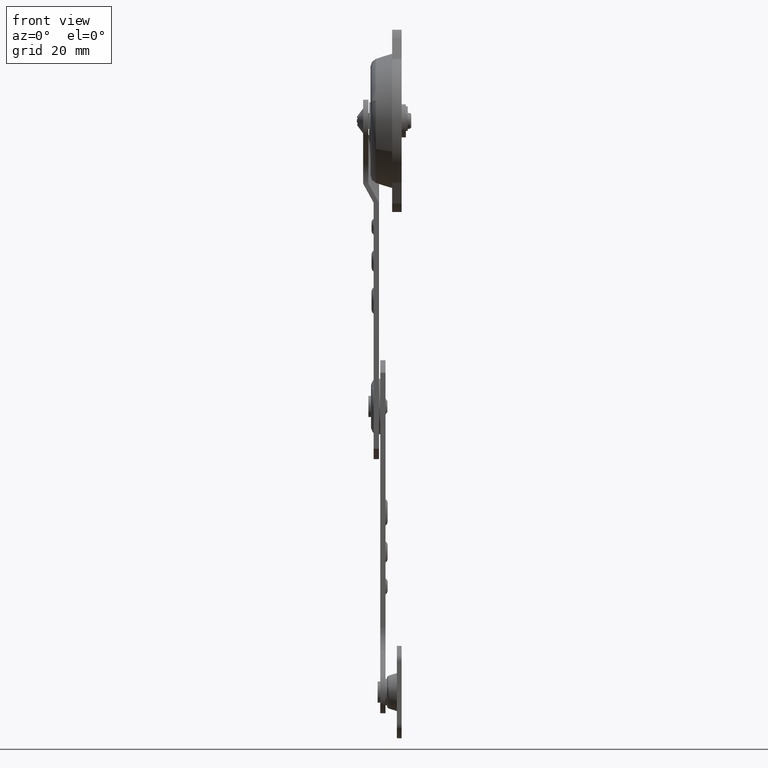
[diagram: clean part render]
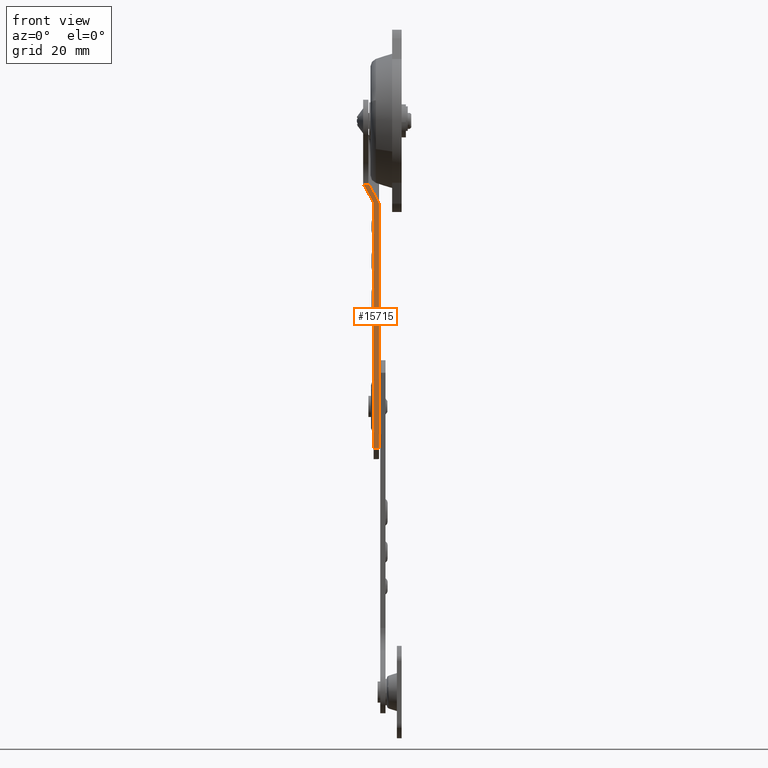
[diagram: same view with one face highlighted and labeled with its STEP entity id]
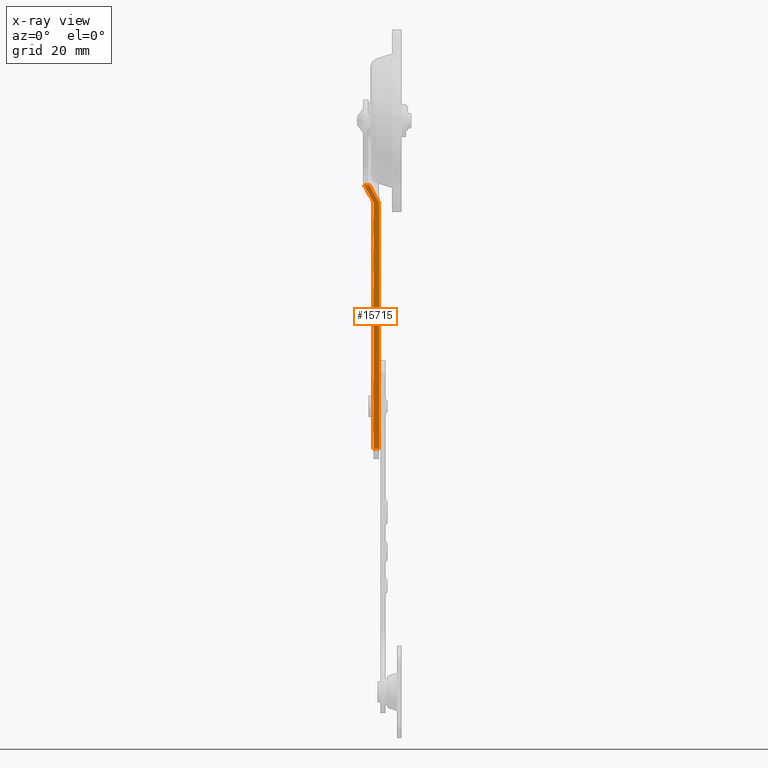
[diagram: x-ray of the same camera — body ghosted, the highlighted face saturated]
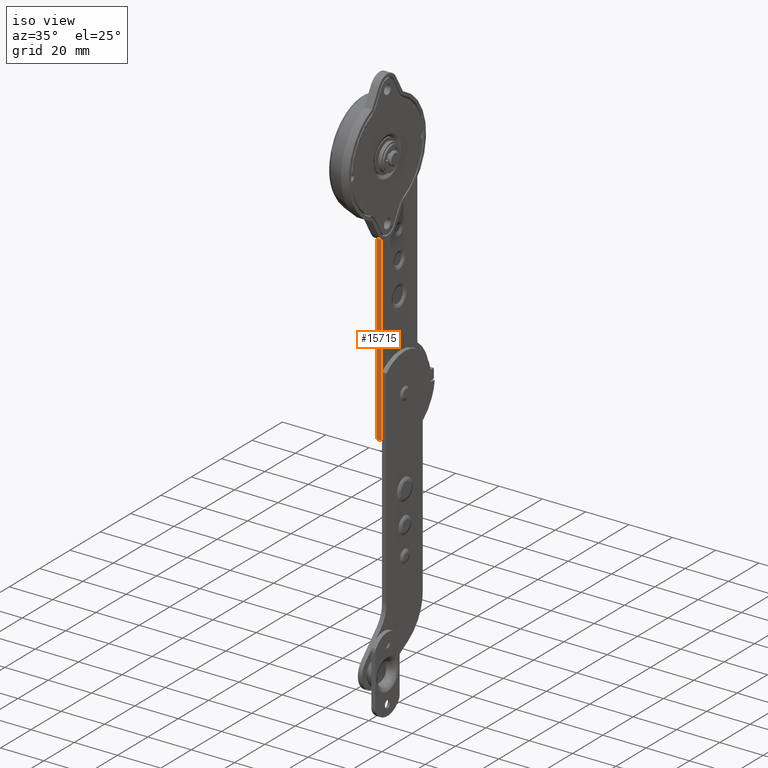
[diagram: same view with one face highlighted and labeled with its STEP entity id]
A machine part, front view. The second image highlights one B-rep face of the part: STEP entity #15715.
The next image is the same camera in x-ray: the body ghosted, the highlighted face saturated — about 0% of this face is hidden behind the body in this view.
A second angle (iso view) of the same face is appended — the face is thin or edge-on in the first view.
In plain terms, the highlighted face is a freeform B-spline surface patch.
Its self-contained STEP definition (entity closure, byte-faithful):
#15467=CARTESIAN_POINT('',(-5.901474E-014,-11.999999999999760,-16.0));
#15468=VERTEX_POINT('',#15467);
#15486=CARTESIAN_POINT('',(-2.000000000000240,-11.999999999999760,-15.999999999999501));
#15487=VERTEX_POINT('',#15486);
#15488=CARTESIAN_POINT('',(-2.000000000000240,-11.999999999999760,-15.999999999999501));
#15489=CARTESIAN_POINT('',(-5.901474E-014,-11.999999999999760,-16.0));
#15490=QUASI_UNIFORM_CURVE('',1,(#15488,#15489),.UNSPECIFIED.,.F.,.U.);
#15491=EDGE_CURVE('',#15487,#15468,#15490,.T.);
#15625=CARTESIAN_POINT('',(-0.263513715750969,-11.999999999999600,77.492638228807010));
#15626=VERTEX_POINT('',#15625);
#15640=CARTESIAN_POINT('',(1.115155E-013,-11.999999999999600,76.467883898689692));
#15641=VERTEX_POINT('',#15640);
#15642=CARTESIAN_POINT('',(-0.263513715750965,-11.999999999999600,77.492638228807010));
#15643=CARTESIAN_POINT('',(-0.176659726087687,-11.999999999999600,77.335504637467039));
#15644=CARTESIAN_POINT('',(-0.111587453859717,-11.999999999999620,77.170780472915354));
#15645=CARTESIAN_POINT('',(-0.056196662125839,-11.999999999999609,76.955832272857833));
#15646=CARTESIAN_POINT('',(-0.046437085489183,-11.999999999999609,76.912383128629727));
#15647=CARTESIAN_POINT('',(-0.029607757077714,-11.999999999999609,76.824547480087006));
#15648=CARTESIAN_POINT('',(-0.022544927331796,-11.999999999999609,76.780141563514150));
#15649=CARTESIAN_POINT('',(-0.005652470575084,-11.999999999999609,76.646920827716727));
#15650=CARTESIAN_POINT('',(1.115606E-013,-11.999999999999600,76.557638449181766));
#15651=CARTESIAN_POINT('',(1.115604E-013,-11.999999999999600,76.467883898689692));
#15652=B_SPLINE_CURVE_WITH_KNOTS('',3,(#15642,#15643,#15644,#15645,#15646,#15647,#15648,#15649,#15650,#15651),.UNSPECIFIED.,.F.,.U.,(4,2,2,2,4),(0.0,0.500000000000000,0.625000000000000,0.750000000000000,1.0),.UNSPECIFIED.);
#15653=EDGE_CURVE('',#15626,#15641,#15652,.T.);
#15671=CARTESIAN_POINT('',(-5.961290882142176,-11.999999999999600,88.700973908623496));
#15672=CARTESIAN_POINT('',(-5.961290882142176,-11.999999999999600,-20.981014583321169));
#15673=CARTESIAN_POINT('',(0.283600769991847,-11.999999999999600,88.700973908623496));
#15674=CARTESIAN_POINT('',(0.283600769991847,-11.999999999999600,-20.981014583321169));
#15675=B_SPLINE_SURFACE_WITH_KNOTS('',1,1,((#15671,#15673),(#15672,#15674)),.UNSPECIFIED.,.F.,.F.,.U.,(2,2),(2,2),(0.0,109.681988491944690),(0.0,6.244891652134023),.UNSPECIFIED.);
#15676=ORIENTED_EDGE('',*,*,#15491,.T.);
#15677=CARTESIAN_POINT('',(-5.901474E-014,-11.999999999999760,-16.0));
#15678=CARTESIAN_POINT('',(1.115155E-013,-11.999999999999600,76.467883898689692));
#15679=QUASI_UNIFORM_CURVE('',1,(#15677,#15678),.UNSPECIFIED.,.F.,.U.);
#15680=EDGE_CURVE('',#15468,#15641,#15679,.T.);
#15681=ORIENTED_EDGE('',*,*,#15680,.T.);
#15682=ORIENTED_EDGE('',*,*,#15653,.F.);
#15683=CARTESIAN_POINT('',(-3.677690264437945,-12.0,83.719962000000095));
#15684=VERTEX_POINT('',#15683);
#15685=CARTESIAN_POINT('',(-0.263513715750976,-11.999999999999609,77.492638228807010));
#15686=CARTESIAN_POINT('',(-1.408748309686748,-11.999999999999609,79.564561756667501));
#15687=CARTESIAN_POINT('',(-2.548521108579236,-11.999999999999600,81.639416508549147));
#15688=CARTESIAN_POINT('',(-3.677690264437912,-11.999999999999600,83.719962000000109));
#15689=QUASI_UNIFORM_CURVE('',3,(#15685,#15686,#15687,#15688),.UNSPECIFIED.,.F.,.U.);
#15690=EDGE_CURVE('',#15626,#15684,#15689,.T.);
#15691=ORIENTED_EDGE('',*,*,#15690,.T.);
#15692=CARTESIAN_POINT('',(-5.677690264437961,-12.0,83.719962000000095));
#15693=VERTEX_POINT('',#15692);
#15694=CARTESIAN_POINT('',(-3.677690264437945,-12.0,83.719962000000095));
#15695=CARTESIAN_POINT('',(-5.677690264437961,-12.0,83.719962000000095));
#15696=QUASI_UNIFORM_CURVE('',1,(#15694,#15695),.UNSPECIFIED.,.F.,.U.);
#15697=EDGE_CURVE('',#15684,#15693,#15696,.T.);
#15698=ORIENTED_EDGE('',*,*,#15697,.T.);
#15699=CARTESIAN_POINT('',(-1.999999999999895,-11.999999999999600,77.016133230340614));
#15700=VERTEX_POINT('',#15699);
#15701=CARTESIAN_POINT('',(-5.677690264437961,-12.0,83.719962000000095));
#15702=CARTESIAN_POINT('',(-4.461948262280271,-11.999999999999600,81.479902104427453));
#15703=CARTESIAN_POINT('',(-3.233967052708433,-11.999999999999609,79.246395691298105));
#15704=CARTESIAN_POINT('',(-1.999999999999893,-11.999999999999609,77.016133230340628));
#15705=QUASI_UNIFORM_CURVE('',3,(#15701,#15702,#15703,#15704),.UNSPECIFIED.,.F.,.U.);
#15706=EDGE_CURVE('',#15693,#15700,#15705,.T.);
#15707=ORIENTED_EDGE('',*,*,#15706,.T.);
#15708=CARTESIAN_POINT('',(-1.999999999999895,-11.999999999999600,77.016133230340614));
#15709=CARTESIAN_POINT('',(-2.000000000000240,-11.999999999999760,-15.999999999999501));
#15710=QUASI_UNIFORM_CURVE('',1,(#15708,#15709),.UNSPECIFIED.,.F.,.U.);
#15711=EDGE_CURVE('',#15700,#15487,#15710,.T.);
#15712=ORIENTED_EDGE('',*,*,#15711,.T.);
#15713=EDGE_LOOP('',(#15676,#15681,#15682,#15691,#15698,#15707,#15712));
#15714=FACE_OUTER_BOUND('',#15713,.T.);
#15715=ADVANCED_FACE('',(#15714),#15675,.T.);